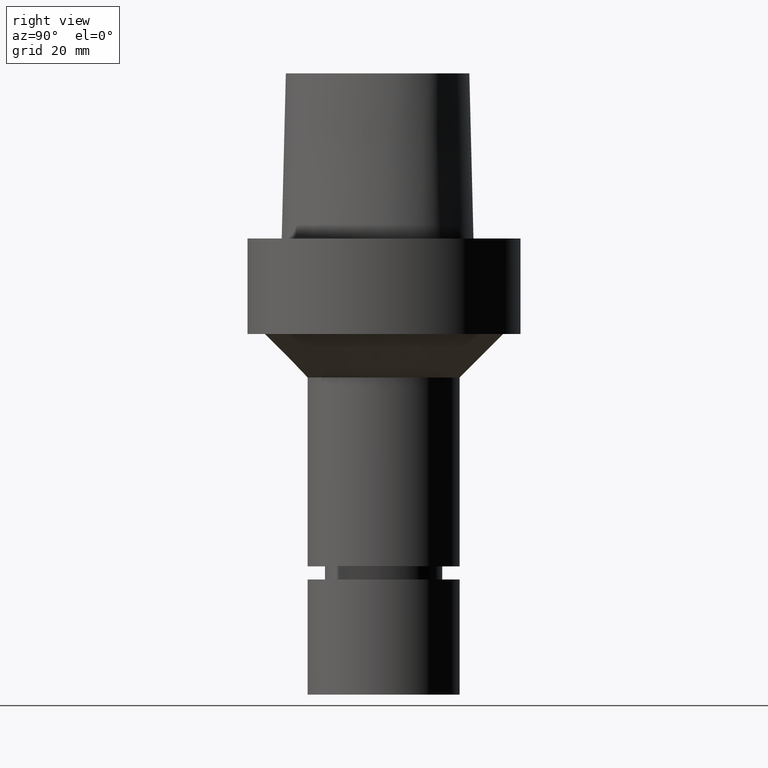
[diagram: clean part render]
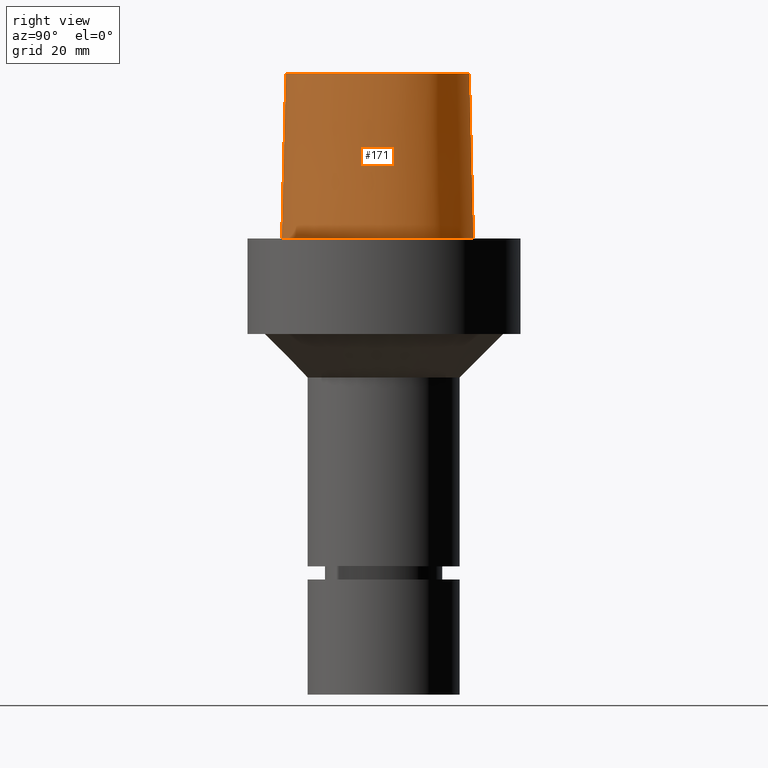
[diagram: same view with one face highlighted and labeled with its STEP entity id]
A machine part, right view. The second image highlights one B-rep face of the part: STEP entity #171.
In plain terms, the highlighted face is a freeform B-spline surface patch.
Its self-contained STEP definition (entity closure, byte-faithful):
#73=EDGE_CURVE('Unnamed[1]',#192,#193,#194,.T.);
#115=EDGE_CURVE('Unnamed[1]',#192,#254,#255,.T.);
#131=EDGE_CURVE('Unnamed[1]',#254,#279,#280,.T.);
#165=EDGE_CURVE('Unnamed[1]',#279,#193,#327,.T.);
#171=ADVANCED_FACE('Unnamed[1]',(#335),#336,.T.);
#192=VERTEX_POINT('',#350);
#193=VERTEX_POINT('',#351);
#194=LINE('',#352,#353);
#254=VERTEX_POINT('',#499);
#255=B_SPLINE_CURVE_WITH_KNOTS('',3,(#500,#501,#502,#503,#504,#505,#506,#507,#508,#509,#510,#511,#512,#513,#514,#515),.UNSPECIFIED.,.F.,.F.,(4,1,1,1,1,1,1,1,1,1,1,1,1,4),(6.61513393087476,6.99917207152274,7.48193246986995,7.96289324787093,8.45540287038584,9.10291653679981,9.67129810936083,10.1618749681153,10.6358867802489,11.1080734988593,11.6043706019633,12.09451993853,12.6985979284494,13.2302678617486),.UNSPECIFIED.);
#279=VERTEX_POINT('',#563);
#280=LINE('',#564,#565);
#327=B_SPLINE_CURVE_WITH_KNOTS('',3,(#641,#642,#643,#644,#645,#646,#647,#648,#649,#650,#651,#652,#653,#654,#655,#656,#657),.UNSPECIFIED.,.F.,.F.,(4,1,1,1,1,1,1,1,1,1,1,1,1,1,4),(-13.2302678617486,-12.816821991069,-12.4033761203893,-11.9899302497097,-11.57648437903,-11.1630385083504,-10.9563155730106,-10.7495926376707,-10.3361467669911,-9.92270089631145,-9.09580915495216,-8.26891741359287,-7.44202567223358,-7.02857980155394,-6.6151339308743),.UNSPECIFIED.);
#335=FACE_OUTER_BOUND('',#667,.T.);
#336=B_SPLINE_SURFACE_WITH_KNOTS('',3,3,((#668,#669,#670,#671),(#672,#673,#674,#675),(#676,#677,#678,#679),(#680,#681,#682,#683),(#684,#685,#686,#687),(#688,#689,#690,#691),(#692,#693,#694,#695),(#696,#697,#698,#699),(#700,#701,#702,#703),(#704,#705,#706,#707),(#708,#709,#710,#711),(#712,#713,#714,#715),(#716,#717,#718,#719),(#720,#721,#722,#723),(#724,#725,#726,#727),(#728,#729,#730,#731),(#732,#733,#734,#735)),.UNSPECIFIED.,.F.,.F.,.F.,(4,1,1,1,1,1,1,1,1,1,1,1,1,1,4),(4,4),(-13.2302678617486,-12.816821991069,-12.4033761203893,-11.9899302497097,-11.57648437903,-11.1630385083504,-10.9563155730106,-10.7495926376707,-10.3361467669911,-9.92270089631145,-9.09580915495216,-8.26891741359287,-7.44202567223358,-7.02857980155394,-6.6151339308743),(-3.8,0.0),.UNSPECIFIED.);
#350=CARTESIAN_POINT('',(0.038736923393866,-22.5191997536361,38.0));
#351=CARTESIAN_POINT('',(0.04359356758149,-23.4691235068931,7.78075697532443E-032));
#352=CARTESIAN_POINT('',(0.038736923393866,-22.5191997536361,38.0));
#353=VECTOR('',#737,38.0118715498723);
#499=CARTESIAN_POINT('',(-0.001218547003662,19.7276821925089,38.0));
#500=CARTESIAN_POINT('',(0.038736923394311,-22.519199753636,38.0));
#501=CARTESIAN_POINT('',(1.31742058183662,-22.512662269405,38.0));
#502=CARTESIAN_POINT('',(4.2093773447498,-21.9116226439989,38.0));
#503=CARTESIAN_POINT('',(8.20895504542113,-19.7798683845067,38.0));
#504=CARTESIAN_POINT('',(11.9784633234593,-16.681663904162,38.0));
#505=CARTESIAN_POINT('',(15.5308821579362,-12.5807487594113,38.0));
#506=CARTESIAN_POINT('',(18.4566248438667,-7.64932246015528,38.0));
#507=CARTESIAN_POINT('',(20.4036090752029,-2.27012499825289,38.0));
#508=CARTESIAN_POINT('',(21.2357187429189,2.79891401173156,38.0));
#509=CARTESIAN_POINT('',(21.0811206267748,7.62543090736657,38.0));
#510=CARTESIAN_POINT('',(19.3383577336563,12.2772250726194,38.0));
#511=CARTESIAN_POINT('',(15.5796322014404,15.5799672120682,38.0));
#512=CARTESIAN_POINT('',(10.8392956074438,17.9834601687347,38.0));
#513=CARTESIAN_POINT('',(5.56068045850571,19.4586143858472,38.0));
#514=CARTESIAN_POINT('',(1.77223893711014,19.6418877095654,38.0));
#515=CARTESIAN_POINT('',(-0.001218367817519,19.7276822012873,38.0));
#563=CARTESIAN_POINT('',(0.044682985379347,20.6765087343109,1.61778115328528E-031));
#564=CARTESIAN_POINT('',(-0.001218547003662,19.7276821925089,38.0));
#565=VECTOR('',#827,38.0118715503078);
#641=CARTESIAN_POINT('',(0.044682985379347,20.6765087343109,1.61778115328528E-031));
#642=CARTESIAN_POINT('',(1.42379272427753,20.6097915814392,8.62816615085482E-032));
#643=CARTESIAN_POINT('',(4.2230955003445,20.4837538303966,1.4791141972894E-031));
#644=CARTESIAN_POINT('',(8.47220762821777,19.6890432607088,9.86076131526265E-032));
#645=CARTESIAN_POINT('',(12.5141247708253,18.2434968480404,0.0));
#646=CARTESIAN_POINT('',(16.3038624872874,16.1734192182143,1.97215226305253E-031));
#647=CARTESIAN_POINT('',(19.1446913988473,13.7036723639434,-1.97215226305253E-031));
#648=CARTESIAN_POINT('',(20.7319894342149,11.1014620996188,0.0));
#649=CARTESIAN_POINT('',(21.7831756505763,8.28099229708081,-1.97215226305253E-031));
#650=CARTESIAN_POINT('',(22.2258240701438,4.60865440596506,0.0));
#651=CARTESIAN_POINT('',(21.7436130080666,-1.11326526354485,0.0));
#652=CARTESIAN_POINT('',(19.5519487660502,-7.95432366164584,0.0));
#653=CARTESIAN_POINT('',(14.9574167123838,-15.2089785567293,0.0));
#654=CARTESIAN_POINT('',(9.66840283021945,-20.0827414369705,-9.86076131526265E-032));
#655=CARTESIAN_POINT('',(4.51628650521788,-22.7946374572188,-9.86076131526265E-032));
#656=CARTESIAN_POINT('',(1.55867251738073,-23.4612972770043,-1.23259516440783E-032));
#657=CARTESIAN_POINT('',(0.04359356758149,-23.4691235068931,7.78075697532443E-032));
#667=EDGE_LOOP('',(#883,#884,#885,#886));
#668=CARTESIAN_POINT('',(-0.001218367817519,19.7276822012873,38.0));
#669=CARTESIAN_POINT('',(0.014082083248157,20.0439577123075,25.3333333333066));
#670=CARTESIAN_POINT('',(0.029382534313671,20.3602332232908,12.6666666666934));
#671=CARTESIAN_POINT('',(0.044682985379347,20.6765087343109,1.61778115328528E-031));
#672=CARTESIAN_POINT('',(1.37788651195108,19.6609652834875,38.0));
#673=CARTESIAN_POINT('',(1.3931885827258,19.9772407169847,25.3333333333066));
#674=CARTESIAN_POINT('',(1.40849065356095,20.2935162254648,12.6666666666934));
#675=CARTESIAN_POINT('',(1.42379272427753,20.6097915814392,8.62816615085482E-032));
#676=CARTESIAN_POINT('',(4.135446440878,19.5347778787784,38.0));
#677=CARTESIAN_POINT('',(4.16466278851883,19.8511031866125,25.3333333333066));
#678=CARTESIAN_POINT('',(4.1938791526746,20.1674284644204,12.6666666666934));
#679=CARTESIAN_POINT('',(4.2230955003445,20.4837538303966,1.4791141972894E-031));
#680=CARTESIAN_POINT('',(8.213607363795,18.7706026638736,38.0));
#681=CARTESIAN_POINT('',(8.29980745008421,19.0767495109635,25.3333333333066));
#682=CARTESIAN_POINT('',(8.38600751285747,19.3828964329996,12.6666666666934));
#683=CARTESIAN_POINT('',(8.47220762821777,19.6890432607088,9.86076131526265E-032));
#684=CARTESIAN_POINT('',(12.1316338645671,17.3698624840857,38.0));
#685=CARTESIAN_POINT('',(12.2591308270381,17.6610739397708,25.3333333333066));
#686=CARTESIAN_POINT('',(12.3866278083543,17.9522853923553,12.6666666666934));
#687=CARTESIAN_POINT('',(12.5141247708253,18.2434968480404,0.0));
#688=CARTESIAN_POINT('',(15.7706546153679,15.3789501349612,38.0));
#689=CARTESIAN_POINT('',(15.9483905900895,15.6437731794811,25.3333333333066));
#690=CARTESIAN_POINT('',(16.1261265513272,15.9085961736944,12.6666666666934));
#691=CARTESIAN_POINT('',(16.3038624872874,16.1734192182143,1.97215226305253E-031));
#692=CARTESIAN_POINT('',(18.4265894256284,13.0570022172893,38.0));
#693=CARTESIAN_POINT('',(18.6659567517146,13.2725589420689,25.3333333333066));
#694=CARTESIAN_POINT('',(18.9053240921419,13.4881156488541,12.6666666666934));
#695=CARTESIAN_POINT('',(19.1446913988473,13.7036723639434,-1.97215226305253E-031));
#696=CARTESIAN_POINT('',(19.8679958653038,10.6923771981998,38.0));
#697=CARTESIAN_POINT('',(20.1559937048299,10.8287388264873,25.3333333333066));
#698=CARTESIAN_POINT('',(20.4439915656177,10.965100461641,12.6666666666934));
#699=CARTESIAN_POINT('',(20.7319894342149,11.1014620996188,0.0));
#700=CARTESIAN_POINT('',(20.8470867582337,8.07149548576131,38.0));
#701=CARTESIAN_POINT('',(21.1591164072431,8.14132775555392,25.3333333333066));
#702=CARTESIAN_POINT('',(21.4711459821861,8.21116003697855,12.6666666666934));
#703=CARTESIAN_POINT('',(21.7831756505763,8.28099229708081,-1.97215226305253E-031));
#704=CARTESIAN_POINT('',(21.2693244256982,4.61157245650171,38.0));
#705=CARTESIAN_POINT('',(21.5881576801997,4.6105997689982,25.3333333333066));
#706=CARTESIAN_POINT('',(21.9069908544037,4.60962709346857,12.6666666666934));
#707=CARTESIAN_POINT('',(22.2258240701438,4.60865440596506,0.0));
#708=CARTESIAN_POINT('',(20.8071610855575,-0.912828649855193,38.0));
#709=CARTESIAN_POINT('',(21.119311671178,-0.979640884839481,25.3333333333066));
#710=CARTESIAN_POINT('',(21.4314624224461,-1.04645306732201,12.6666666666934));
#711=CARTESIAN_POINT('',(21.7436130080666,-1.11326526354485,0.0));
#712=CARTESIAN_POINT('',(18.6841935581315,-7.54428794252837,38.0));
#713=CARTESIAN_POINT('',(18.9734452551861,-7.6809665891091,25.3333333333066));
#714=CARTESIAN_POINT('',(19.2626970689956,-7.81764505382656,12.6666666666934));
#715=CARTESIAN_POINT('',(19.5519487660502,-7.95432366164584,0.0));
#716=CARTESIAN_POINT('',(14.2175552814,-14.5971504342323,38.0));
#717=CARTESIAN_POINT('',(14.4641757465198,-14.8010930946929,25.3333333333066));
#718=CARTESIAN_POINT('',(14.710796247264,-15.0050359737917,12.6666666666934));
#719=CARTESIAN_POINT('',(14.9574167123838,-15.2089785567293,0.0));
#720=CARTESIAN_POINT('',(9.0844808732933,-19.3179298129689,38.0));
#721=CARTESIAN_POINT('',(9.27912152349017,-19.572866915557,25.3333333333066));
#722=CARTESIAN_POINT('',(9.47376218971294,-19.827804295621,12.6666666666934));
#723=CARTESIAN_POINT('',(9.66840283021945,-20.0827414369705,-9.86076131526265E-032));
#724=CARTESIAN_POINT('',(4.17112919194182,-21.8987568152736,38.0));
#725=CARTESIAN_POINT('',(4.28618163483998,-22.1973837173649,25.3333333333066));
#726=CARTESIAN_POINT('',(4.40123406239433,-22.4960105163661,12.6666666666934));
#727=CARTESIAN_POINT('',(4.51628650521788,-22.7946374572188,-9.86076131526265E-032));
#728=CARTESIAN_POINT('',(1.41533654381097,-22.5120888467812,38.0));
#729=CARTESIAN_POINT('',(1.46311520162011,-22.8284916374445,25.3333333333066));
#730=CARTESIAN_POINT('',(1.51089385942236,-23.144894486341,12.6666666666934));
#731=CARTESIAN_POINT('',(1.55867251738073,-23.4612972770043,-1.23259516440783E-032));
#732=CARTESIAN_POINT('',(0.038736923393866,-22.5191997536361,38.0));
#733=CARTESIAN_POINT('',(0.04035580478973,-22.8358410047159,25.3333333333066));
#734=CARTESIAN_POINT('',(0.041974686185626,-23.1524822558133,12.6666666666934));
#735=CARTESIAN_POINT('',(0.04359356758149,-23.4691235068931,7.78075697532443E-032));
#737=DIRECTION('',(0.000127766510556,-0.024990186342461,-0.999687688361864));
#827=DIRECTION('',(0.001207557810519,0.024961321374199,-0.999687688350411));
#883=ORIENTED_EDGE('',*,*,#165,.F.);
#884=ORIENTED_EDGE('',*,*,#131,.F.);
#885=ORIENTED_EDGE('',*,*,#115,.F.);
#886=ORIENTED_EDGE('',*,*,#73,.T.);